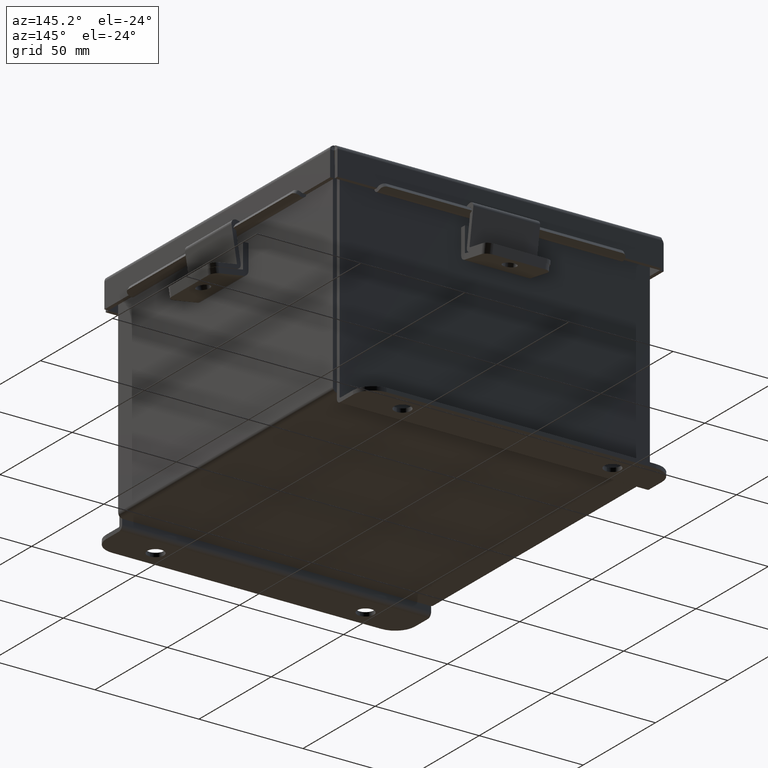
[diagram: clean part render]
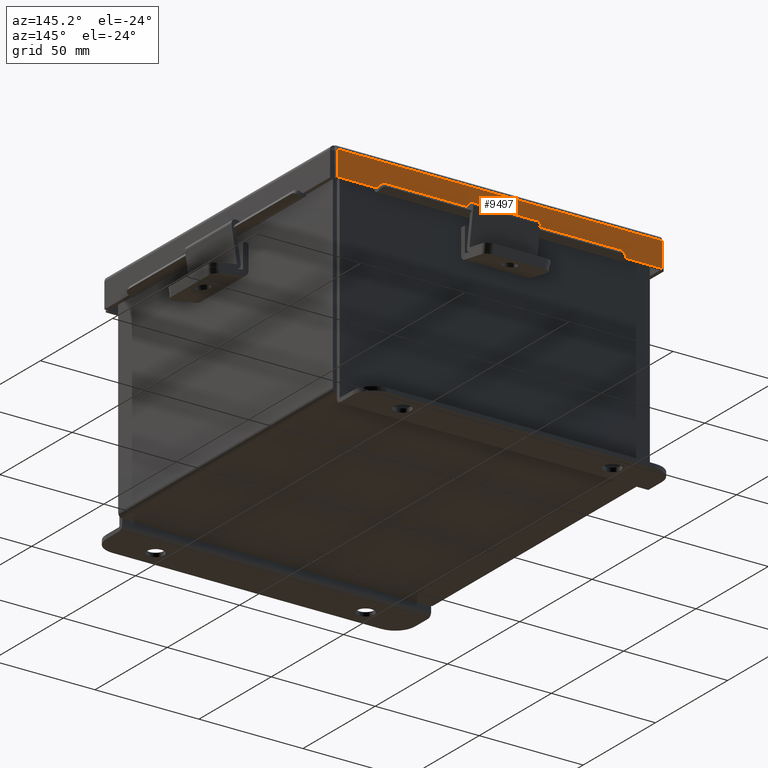
[diagram: same view with one face highlighted and labeled with its STEP entity id]
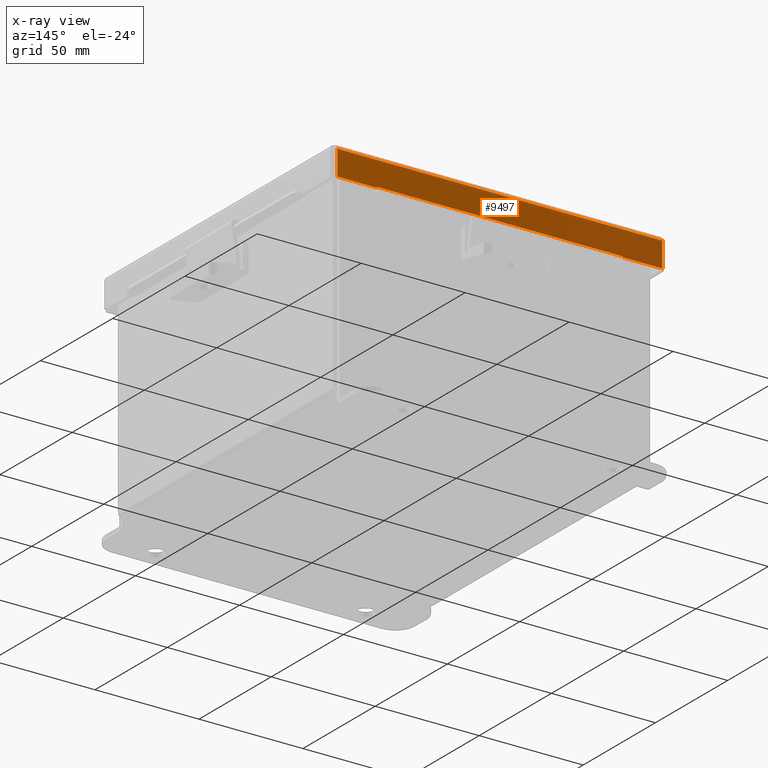
[diagram: x-ray of the same camera — body ghosted, the highlighted face saturated]
A machine part, auxiliary view. The second image highlights one B-rep face of the part: STEP entity #9497.
The next image is the same camera in x-ray: the body ghosted, the highlighted face saturated — about 0% of this face is hidden behind the body in this view.
In plain terms, the highlighted planar face has unit normal (-0, -1, -0).
Its self-contained STEP definition (entity closure, byte-faithful):
#114 = VERTEX_POINT ( 'NONE', #4974 ) ;
#116 = FACE_OUTER_BOUND ( 'NONE', #2606, .T. ) ;
#234 = LINE ( 'NONE', #2017, #4610 ) ;
#306 = DIRECTION ( 'NONE',  ( 0.0000000000000000000, -3.363654414526077700E-015, -1.000000000000000000 ) ) ;
#400 = VECTOR ( 'NONE', #1415, 39.37007874015748100 ) ;
#480 = DIRECTION ( 'NONE',  ( 0.0000000000000000000, 3.504962610060573200E-014, -1.000000000000000000 ) ) ;
#760 = CARTESIAN_POINT ( 'NONE',  ( 3.074478932188135200, 3.156250000000000000, -2.512649847650985800E-016 ) ) ;
#939 = VERTEX_POINT ( 'NONE', #1011 ) ;
#1011 = CARTESIAN_POINT ( 'NONE',  ( 3.074478932188135200, 3.156250000000001800, 0.4872999999999997900 ) ) ;
#1037 = ORIENTED_EDGE ( 'NONE', *, *, #1136, .T. ) ;
#1136 = EDGE_CURVE ( 'NONE', #3243, #8401, #8562, .T. ) ;
#1415 = DIRECTION ( 'NONE',  ( -7.009925220121116200E-014, -7.009925220121116200E-014, 1.000000000000000000 ) ) ;
#1539 = DIRECTION ( 'NONE',  ( -0.0000000000000000000, 3.363654414526077700E-015, 1.000000000000000000 ) ) ;
#1583 = CARTESIAN_POINT ( 'NONE',  ( 1.293110781001012800E-017, 3.156250000000000000, -1.087734790185951700E-014 ) ) ;
#2017 = CARTESIAN_POINT ( 'NONE',  ( 7.658911662237355500E-018, 3.156250000000001800, 0.4872999999999997900 ) ) ;
#2091 = VERTEX_POINT ( 'NONE', #3071 ) ;
#2097 = VECTOR ( 'NONE', #5477, 39.37007874015748100 ) ;
#2106 = ORIENTED_EDGE ( 'NONE', *, *, #2610, .T. ) ;
#2404 = ORIENTED_EDGE ( 'NONE', *, *, #3206, .F. ) ;
#2587 = LINE ( 'NONE', #8827, #400 ) ;
#2606 = EDGE_LOOP ( 'NONE', ( #8841, #2106, #2404, #3405, #1037, #4059, #7107, #4039 ) ) ;
#2610 = EDGE_CURVE ( 'NONE', #114, #939, #234, .T. ) ;
#3067 = VECTOR ( 'NONE', #7183, 39.37007874015748100 ) ;
#3071 = CARTESIAN_POINT ( 'NONE',  ( -2.324478932188136100, 3.156250000000001800, 0.4872999999999997900 ) ) ;
#3194 = DIRECTION ( 'NONE',  ( 1.000000000000000000, -3.639204975723964100E-032, 1.189815042988946500E-046 ) ) ;
#3206 = EDGE_CURVE ( 'NONE', #7787, #939, #3834, .T. ) ;
#3243 = VERTEX_POINT ( 'NONE', #8984 ) ;
#3278 = CARTESIAN_POINT ( 'NONE',  ( 7.658911662237355500E-018, 3.156250000000001800, 0.4872999999999997900 ) ) ;
#3402 = EDGE_CURVE ( 'NONE', #114, #4209, #7030, .T. ) ;
#3405 = ORIENTED_EDGE ( 'NONE', *, *, #4819, .F. ) ;
#3520 = DIRECTION ( 'NONE',  ( 0.0000000000000000000, 3.363654414526077700E-015, 1.000000000000000000 ) ) ;
#3635 = CARTESIAN_POINT ( 'NONE',  ( 2.324478932188134700, 3.156250000000002700, 0.4717115427318805400 ) ) ;
#3834 = LINE ( 'NONE', #760, #6006 ) ;
#4022 = CARTESIAN_POINT ( 'NONE',  ( -3.074478932188136100, 3.156250000000000000, -1.087734790185951700E-014 ) ) ;
#4039 = ORIENTED_EDGE ( 'NONE', *, *, #8211, .F. ) ;
#4059 = ORIENTED_EDGE ( 'NONE', *, *, #8974, .T. ) ;
#4063 = LINE ( 'NONE', #3278, #2097 ) ;
#4209 = VERTEX_POINT ( 'NONE', #5212 ) ;
#4610 = VECTOR ( 'NONE', #8824, 39.37007874015748100 ) ;
#4819 = EDGE_CURVE ( 'NONE', #3243, #7787, #9085, .T. ) ;
#4974 = CARTESIAN_POINT ( 'NONE',  ( 2.324478932188135200, 3.156250000000001800, 0.4872999999999997900 ) ) ;
#5022 = EDGE_CURVE ( 'NONE', #8251, #2091, #2587, .T. ) ;
#5023 = LINE ( 'NONE', #3635, #3067 ) ;
#5212 = CARTESIAN_POINT ( 'NONE',  ( 2.324478932188135200, 3.156250000000001800, 0.4717115427318805400 ) ) ;
#5477 = DIRECTION ( 'NONE',  ( 1.000000000000000000, 0.0000000000000000000, 1.081919997490797700E-017 ) ) ;
#5498 = CARTESIAN_POINT ( 'NONE',  ( 3.156249999999998200, 3.156250000000000000, 0.01299999999999986400 ) ) ;
#5576 = VECTOR ( 'NONE', #3194, 39.37007874015748100 ) ;
#5645 = VECTOR ( 'NONE', #480, 39.37007874015748100 ) ;
#6006 = VECTOR ( 'NONE', #1539, 39.37007874015748100 ) ;
#6168 = CARTESIAN_POINT ( 'NONE',  ( -2.324478932188135200, 3.156250000000001800, 0.4717115427318805400 ) ) ;
#6890 = AXIS2_PLACEMENT_3D ( 'NONE', #1583, #9231, #306 ) ;
#7030 = LINE ( 'NONE', #7903, #5645 ) ;
#7107 = ORIENTED_EDGE ( 'NONE', *, *, #5022, .F. ) ;
#7183 = DIRECTION ( 'NONE',  ( -1.000000000000000000, -0.0000000000000000000, -0.0000000000000000000 ) ) ;
#7195 = CARTESIAN_POINT ( 'NONE',  ( 3.074478932188135200, 3.156250000000000000, 0.01299999999999985900 ) ) ;
#7787 = VERTEX_POINT ( 'NONE', #7195 ) ;
#7903 = CARTESIAN_POINT ( 'NONE',  ( 2.324478932188135200, 3.156250000000002200, 0.4872999999999999000 ) ) ;
#8211 = EDGE_CURVE ( 'NONE', #4209, #8251, #5023, .T. ) ;
#8251 = VERTEX_POINT ( 'NONE', #6168 ) ;
#8323 = VECTOR ( 'NONE', #3520, 39.37007874015748100 ) ;
#8401 = VERTEX_POINT ( 'NONE', #9568 ) ;
#8562 = LINE ( 'NONE', #4022, #8323 ) ;
#8824 = DIRECTION ( 'NONE',  ( 1.000000000000000000, 0.0000000000000000000, 1.081919997490797700E-017 ) ) ;
#8827 = CARTESIAN_POINT ( 'NONE',  ( -2.324478932188135200, 3.156250000000002700, 0.4717115427318805400 ) ) ;
#8841 = ORIENTED_EDGE ( 'NONE', *, *, #3402, .F. ) ;
#8974 = EDGE_CURVE ( 'NONE', #8401, #2091, #4063, .T. ) ;
#8984 = CARTESIAN_POINT ( 'NONE',  ( -3.074478932188136100, 3.156250000000000000, 0.01299999999999986400 ) ) ;
#9044 = PLANE ( 'NONE',  #6890 ) ;
#9085 = LINE ( 'NONE', #5498, #5576 ) ;
#9231 = DIRECTION ( 'NONE',  ( -3.639204975723964100E-032, -1.000000000000000000, 3.363654414526077700E-015 ) ) ;
#9497 = ADVANCED_FACE ( 'NONE', ( #116 ), #9044, .F. ) ;
#9568 = CARTESIAN_POINT ( 'NONE',  ( -3.074478932188136100, 3.156250000000001800, 0.4872999999999997300 ) ) ;